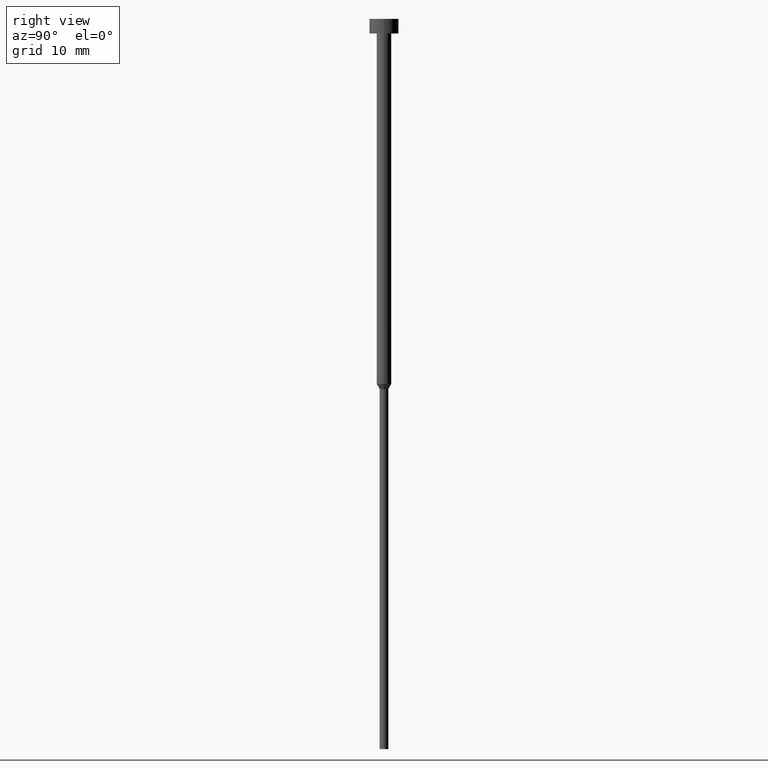
[diagram: clean part render]
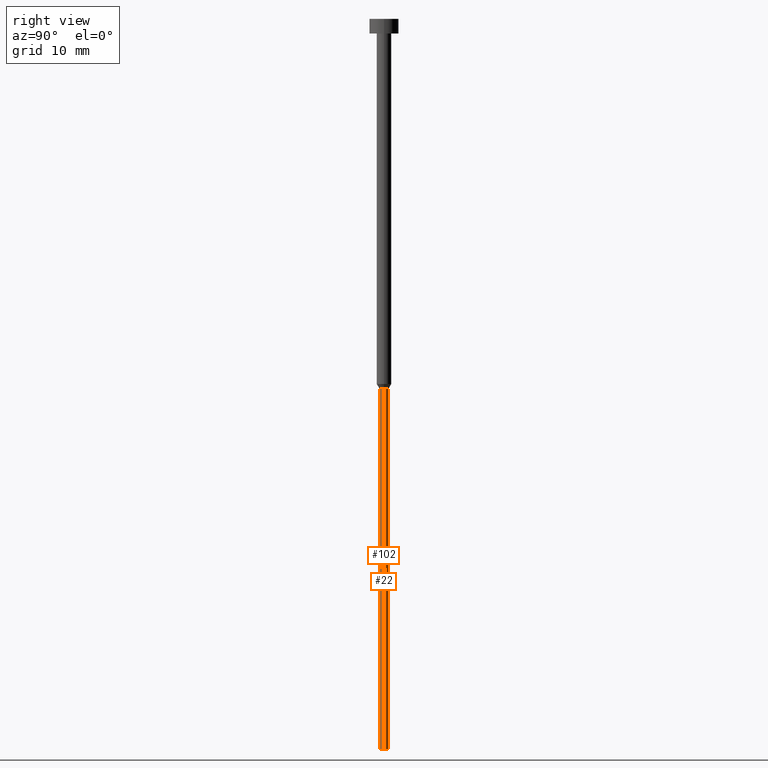
[diagram: same view with one multi-face feature highlighted, each face labeled with its STEP entity id]
A machine part, right view. The highlighted faces form ONE feature: a constant-radius fillet chain: 2 tangent blend faces with common blend radius 0.6 mm. The faces share edges in the B-rep.
Their STEP definitions:
[1] entity #102 (Cylinder):
#9 = LINE ( 'NONE', #275, #221 ) ;
#17 = EDGE_LOOP ( 'NONE', ( #18, #174, #290, #153 ) ) ;
#18 = ORIENTED_EDGE ( 'NONE', *, *, #96, .F. ) ;
#21 = CIRCLE ( 'NONE', #30, 0.5999999999999998668 ) ;
#24 = VERTEX_POINT ( 'NONE', #207 ) ;
#27 = DIRECTION ( 'NONE',  ( -0.000000000000000000, -0.000000000000000000, 1.000000000000000000 ) ) ;
#30 = AXIS2_PLACEMENT_3D ( 'NONE', #181, #132, #57 ) ;
#37 = CARTESIAN_POINT ( 'NONE',  ( -0.5999999999999999778, 7.347880794884117764E-17, -50.69282032302755425 ) ) ;
#57 = DIRECTION ( 'NONE',  ( 1.000000000000000000, 0.000000000000000000, 0.000000000000000000 ) ) ;
#59 = CARTESIAN_POINT ( 'NONE',  ( 0.000000000000000000, 0.000000000000000000, 0.000000000000000000 ) ) ;
#61 = DIRECTION ( 'NONE',  ( -0.000000000000000000, -0.000000000000000000, 1.000000000000000000 ) ) ;
#74 = CARTESIAN_POINT ( 'NONE',  ( 0.5999999999999999778, 0.000000000000000000, -50.69282032302755425 ) ) ;
#85 = DIRECTION ( 'NONE',  ( -0.000000000000000000, -0.000000000000000000, 1.000000000000000000 ) ) ;
#96 = EDGE_CURVE ( 'NONE', #118, #316, #9, .T. ) ;
#100 = EDGE_CURVE ( 'NONE', #118, #24, #21, .T. ) ;
#102 = ADVANCED_FACE ( 'NONE', ( #182 ), #310, .T. ) ;
#118 = VERTEX_POINT ( 'NONE', #122 ) ;
#122 = CARTESIAN_POINT ( 'NONE',  ( -0.5999999999999998668, 7.347880794884117764E-17, -100.0000000000000000 ) ) ;
#132 = DIRECTION ( 'NONE',  ( -0.000000000000000000, -0.000000000000000000, 1.000000000000000000 ) ) ;
#153 = ORIENTED_EDGE ( 'NONE', *, *, #251, .F. ) ;
#154 = CARTESIAN_POINT ( 'NONE',  ( 0.000000000000000000, 0.000000000000000000, -50.69282032302755425 ) ) ;
#161 = DIRECTION ( 'NONE',  ( -0.000000000000000000, -0.000000000000000000, 1.000000000000000000 ) ) ;
#163 = CARTESIAN_POINT ( 'NONE',  ( 0.5999999999999998668, 0.000000000000000000, 0.000000000000000000 ) ) ;
#174 = ORIENTED_EDGE ( 'NONE', *, *, #100, .T. ) ;
#181 = CARTESIAN_POINT ( 'NONE',  ( 0.000000000000000000, 0.000000000000000000, -100.0000000000000000 ) ) ;
#182 = FACE_OUTER_BOUND ( 'NONE', #17, .T. ) ;
#197 = VERTEX_POINT ( 'NONE', #74 ) ;
#207 = CARTESIAN_POINT ( 'NONE',  ( 0.5999999999999998668, 0.000000000000000000, -100.0000000000000000 ) ) ;
#215 = DIRECTION ( 'NONE',  ( 1.000000000000000000, 0.000000000000000000, 0.000000000000000000 ) ) ;
#221 = VECTOR ( 'NONE', #85, 1000.000000000000000 ) ;
#228 = AXIS2_PLACEMENT_3D ( 'NONE', #59, #161, #240 ) ;
#240 = DIRECTION ( 'NONE',  ( 1.000000000000000000, 0.000000000000000000, 0.000000000000000000 ) ) ;
#251 = EDGE_CURVE ( 'NONE', #316, #197, #277, .T. ) ;
#264 = AXIS2_PLACEMENT_3D ( 'NONE', #154, #27, #215 ) ;
#273 = LINE ( 'NONE', #163, #347 ) ;
#275 = CARTESIAN_POINT ( 'NONE',  ( -0.5999999999999998668, 7.347880794884117764E-17, 0.000000000000000000 ) ) ;
#277 = CIRCLE ( 'NONE', #264, 0.5999999999999999778 ) ;
#278 = EDGE_CURVE ( 'NONE', #24, #197, #273, .T. ) ;
#290 = ORIENTED_EDGE ( 'NONE', *, *, #278, .T. ) ;
#310 = CYLINDRICAL_SURFACE ( 'NONE', #228, 0.5999999999999998668 ) ;
#316 = VERTEX_POINT ( 'NONE', #37 ) ;
#347 = VECTOR ( 'NONE', #61, 1000.000000000000000 ) ;
[2] entity #22 (Cylinder):
#2 = ORIENTED_EDGE ( 'NONE', *, *, #307, .F. ) ;
#9 = LINE ( 'NONE', #275, #221 ) ;
#10 = DIRECTION ( 'NONE',  ( 1.000000000000000000, 0.000000000000000000, 0.000000000000000000 ) ) ;
#22 = ADVANCED_FACE ( 'NONE', ( #103 ), #330, .T. ) ;
#24 = VERTEX_POINT ( 'NONE', #207 ) ;
#28 = ORIENTED_EDGE ( 'NONE', *, *, #96, .T. ) ;
#37 = CARTESIAN_POINT ( 'NONE',  ( -0.5999999999999999778, 7.347880794884117764E-17, -50.69282032302755425 ) ) ;
#50 = CARTESIAN_POINT ( 'NONE',  ( 0.000000000000000000, 0.000000000000000000, -100.0000000000000000 ) ) ;
#54 = DIRECTION ( 'NONE',  ( 1.000000000000000000, 0.000000000000000000, 0.000000000000000000 ) ) ;
#61 = DIRECTION ( 'NONE',  ( -0.000000000000000000, -0.000000000000000000, 1.000000000000000000 ) ) ;
#74 = CARTESIAN_POINT ( 'NONE',  ( 0.5999999999999999778, 0.000000000000000000, -50.69282032302755425 ) ) ;
#84 = DIRECTION ( 'NONE',  ( 1.000000000000000000, 0.000000000000000000, 0.000000000000000000 ) ) ;
#85 = DIRECTION ( 'NONE',  ( -0.000000000000000000, -0.000000000000000000, 1.000000000000000000 ) ) ;
#90 = AXIS2_PLACEMENT_3D ( 'NONE', #50, #331, #84 ) ;
#94 = EDGE_LOOP ( 'NONE', ( #231, #28, #2, #319 ) ) ;
#96 = EDGE_CURVE ( 'NONE', #118, #316, #9, .T. ) ;
#103 = FACE_OUTER_BOUND ( 'NONE', #94, .T. ) ;
#118 = VERTEX_POINT ( 'NONE', #122 ) ;
#122 = CARTESIAN_POINT ( 'NONE',  ( -0.5999999999999998668, 7.347880794884117764E-17, -100.0000000000000000 ) ) ;
#163 = CARTESIAN_POINT ( 'NONE',  ( 0.5999999999999998668, 0.000000000000000000, 0.000000000000000000 ) ) ;
#164 = AXIS2_PLACEMENT_3D ( 'NONE', #242, #314, #10 ) ;
#184 = CIRCLE ( 'NONE', #90, 0.5999999999999998668 ) ;
#197 = VERTEX_POINT ( 'NONE', #74 ) ;
#207 = CARTESIAN_POINT ( 'NONE',  ( 0.5999999999999998668, 0.000000000000000000, -100.0000000000000000 ) ) ;
#221 = VECTOR ( 'NONE', #85, 1000.000000000000000 ) ;
#231 = ORIENTED_EDGE ( 'NONE', *, *, #254, .T. ) ;
#242 = CARTESIAN_POINT ( 'NONE',  ( 0.000000000000000000, 0.000000000000000000, -50.69282032302755425 ) ) ;
#254 = EDGE_CURVE ( 'NONE', #24, #118, #184, .T. ) ;
#259 = AXIS2_PLACEMENT_3D ( 'NONE', #323, #327, #54 ) ;
#273 = LINE ( 'NONE', #163, #347 ) ;
#275 = CARTESIAN_POINT ( 'NONE',  ( -0.5999999999999998668, 7.347880794884117764E-17, 0.000000000000000000 ) ) ;
#278 = EDGE_CURVE ( 'NONE', #24, #197, #273, .T. ) ;
#280 = CIRCLE ( 'NONE', #164, 0.5999999999999999778 ) ;
#307 = EDGE_CURVE ( 'NONE', #197, #316, #280, .T. ) ;
#314 = DIRECTION ( 'NONE',  ( -0.000000000000000000, -0.000000000000000000, 1.000000000000000000 ) ) ;
#316 = VERTEX_POINT ( 'NONE', #37 ) ;
#319 = ORIENTED_EDGE ( 'NONE', *, *, #278, .F. ) ;
#323 = CARTESIAN_POINT ( 'NONE',  ( 0.000000000000000000, 0.000000000000000000, 0.000000000000000000 ) ) ;
#327 = DIRECTION ( 'NONE',  ( -0.000000000000000000, -0.000000000000000000, 1.000000000000000000 ) ) ;
#330 = CYLINDRICAL_SURFACE ( 'NONE', #259, 0.5999999999999998668 ) ;
#331 = DIRECTION ( 'NONE',  ( -0.000000000000000000, -0.000000000000000000, 1.000000000000000000 ) ) ;
#347 = VECTOR ( 'NONE', #61, 1000.000000000000000 ) ;